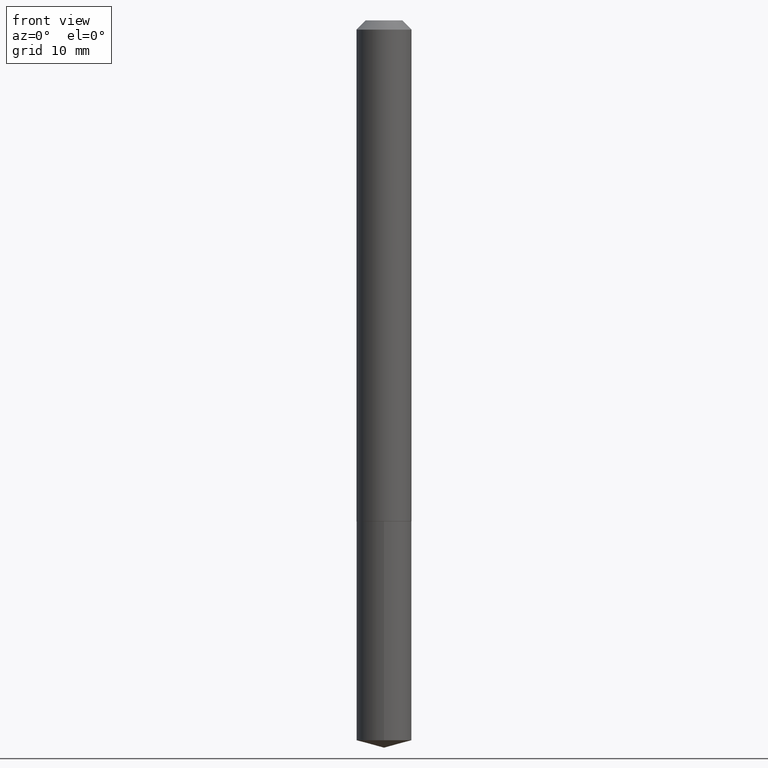
[diagram: clean part render]
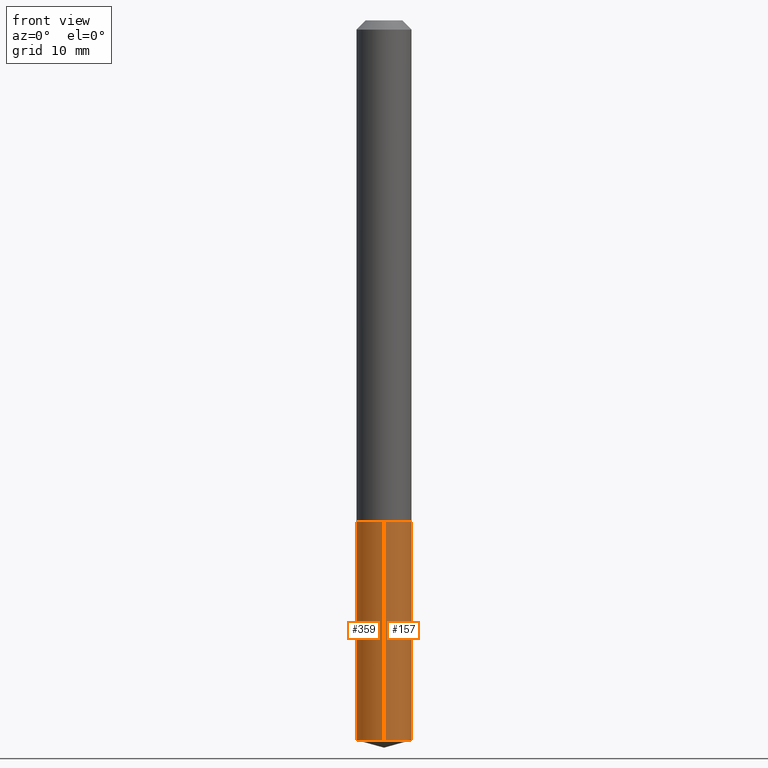
[diagram: same view with one multi-face feature highlighted, each face labeled with its STEP entity id]
A machine part, front view. The highlighted faces form ONE feature: a constant-radius fillet chain: 2 tangent blend faces with common blend radius 2.3495 mm. The faces share edges in the B-rep.
Their STEP definitions:
[1] entity #157 (Cylinder):
#19 = DIRECTION ( 'NONE',  ( -2.445456946378660043E-29, 3.491498322761038750E-15, 1.000000000000000000 ) ) ;
#35 = LINE ( 'NONE', #182, #123 ) ;
#36 = AXIS2_PLACEMENT_3D ( 'NONE', #197, #230, #314 ) ;
#46 = CARTESIAN_POINT ( 'NONE',  ( 5.908524411963939619E-29, -8.435831871635287469E-15, -2.416114699700121715 ) ) ;
#50 = CARTESIAN_POINT ( 'NONE',  ( 6.572520305781515328E-16, 0.09249999999999154732, -2.416114699700122159 ) ) ;
#59 = EDGE_CURVE ( 'NONE', #110, #358, #235, .T. ) ;
#67 = CARTESIAN_POINT ( 'NONE',  ( -6.459240476859384725E-16, -0.09250000000000588307, -1.680999999999999828 ) ) ;
#78 = CARTESIAN_POINT ( 'NONE',  ( 4.110833063197214951E-29, -5.869180130595328501E-15, -1.681000000000000272 ) ) ;
#83 = DIRECTION ( 'NONE',  ( -6.982962677686265922E-15, -1.000000000000000000, 2.953349182339743999E-15 ) ) ;
#89 = ORIENTED_EDGE ( 'NONE', *, *, #155, .F. ) ;
#104 = DIRECTION ( 'NONE',  ( -2.445456946378660043E-29, 3.491498322761038355E-15, 1.000000000000000000 ) ) ;
#110 = VERTEX_POINT ( 'NONE', #50 ) ;
#123 = VECTOR ( 'NONE', #301, 39.37007874015748143 ) ;
#130 = CARTESIAN_POINT ( 'NONE',  ( 6.572520305781518286E-16, 0.09249999999999412859, -1.681000000000000494 ) ) ;
#137 = DIRECTION ( 'NONE',  ( -2.445456946378660043E-29, 3.491498322761038355E-15, 1.000000000000000000 ) ) ;
#141 = AXIS2_PLACEMENT_3D ( 'NONE', #78, #137, #143 ) ;
#143 = DIRECTION ( 'NONE',  ( -6.982962677686265922E-15, -1.000000000000000000, 2.953349182339743999E-15 ) ) ;
#147 = ORIENTED_EDGE ( 'NONE', *, *, #214, .T. ) ;
#155 = EDGE_CURVE ( 'NONE', #339, #358, #169, .T. ) ;
#157 = ADVANCED_FACE ( 'NONE', ( #345 ), #227, .T. ) ;
#169 = CIRCLE ( 'NONE', #36, 0.09249999999999999889 ) ;
#172 = CARTESIAN_POINT ( 'NONE',  ( -6.459240476859204273E-16, -0.09250000000000842271, -2.416114699700121715 ) ) ;
#182 = CARTESIAN_POINT ( 'NONE',  ( -6.459240476859384725E-16, -0.09250000000000588307, -1.680999999999999828 ) ) ;
#197 = CARTESIAN_POINT ( 'NONE',  ( 4.110833063197214951E-29, -5.869180130595328501E-15, -1.681000000000000272 ) ) ;
#210 = VECTOR ( 'NONE', #19, 39.37007874015748143 ) ;
#214 = EDGE_CURVE ( 'NONE', #244, #110, #331, .T. ) ;
#227 = CYLINDRICAL_SURFACE ( 'NONE', #141, 0.09249999999999999889 ) ;
#230 = DIRECTION ( 'NONE',  ( -2.445456946378660043E-29, 3.491498322761038355E-15, 1.000000000000000000 ) ) ;
#235 = LINE ( 'NONE', #296, #210 ) ;
#244 = VERTEX_POINT ( 'NONE', #172 ) ;
#245 = AXIS2_PLACEMENT_3D ( 'NONE', #46, #104, #83 ) ;
#282 = EDGE_LOOP ( 'NONE', ( #147, #312, #89, #356 ) ) ;
#296 = CARTESIAN_POINT ( 'NONE',  ( 6.572520305781336848E-16, 0.09249999999999412859, -1.681000000000000494 ) ) ;
#301 = DIRECTION ( 'NONE',  ( -2.445456946378660043E-29, 3.491498322761038750E-15, 1.000000000000000000 ) ) ;
#312 = ORIENTED_EDGE ( 'NONE', *, *, #59, .T. ) ;
#314 = DIRECTION ( 'NONE',  ( -6.982962677686265922E-15, -1.000000000000000000, 2.953349182339743999E-15 ) ) ;
#330 = EDGE_CURVE ( 'NONE', #244, #339, #35, .T. ) ;
#331 = CIRCLE ( 'NONE', #245, 0.09249999999999999889 ) ;
#339 = VERTEX_POINT ( 'NONE', #67 ) ;
#345 = FACE_OUTER_BOUND ( 'NONE', #282, .T. ) ;
#356 = ORIENTED_EDGE ( 'NONE', *, *, #330, .F. ) ;
#358 = VERTEX_POINT ( 'NONE', #130 ) ;
[2] entity #359 (Cylinder):
#3 = CYLINDRICAL_SURFACE ( 'NONE', #154, 0.09249999999999999889 ) ;
#14 = ORIENTED_EDGE ( 'NONE', *, *, #330, .T. ) ;
#19 = DIRECTION ( 'NONE',  ( -2.445456946378660043E-29, 3.491498322761038750E-15, 1.000000000000000000 ) ) ;
#21 = DIRECTION ( 'NONE',  ( -2.445456946378660043E-29, 3.491498322761038355E-15, 1.000000000000000000 ) ) ;
#35 = LINE ( 'NONE', #182, #123 ) ;
#50 = CARTESIAN_POINT ( 'NONE',  ( 6.572520305781515328E-16, 0.09249999999999154732, -2.416114699700122159 ) ) ;
#52 = DIRECTION ( 'NONE',  ( -6.982962677686265922E-15, -1.000000000000000000, 2.953349182339743999E-15 ) ) ;
#59 = EDGE_CURVE ( 'NONE', #110, #358, #235, .T. ) ;
#65 = CIRCLE ( 'NONE', #85, 0.09249999999999999889 ) ;
#67 = CARTESIAN_POINT ( 'NONE',  ( -6.459240476859384725E-16, -0.09250000000000588307, -1.680999999999999828 ) ) ;
#68 = CIRCLE ( 'NONE', #366, 0.09249999999999999889 ) ;
#85 = AXIS2_PLACEMENT_3D ( 'NONE', #289, #21, #146 ) ;
#91 = FACE_OUTER_BOUND ( 'NONE', #159, .T. ) ;
#94 = EDGE_CURVE ( 'NONE', #358, #339, #68, .T. ) ;
#110 = VERTEX_POINT ( 'NONE', #50 ) ;
#123 = VECTOR ( 'NONE', #301, 39.37007874015748143 ) ;
#127 = CARTESIAN_POINT ( 'NONE',  ( 4.110833063197214951E-29, -5.869180130595328501E-15, -1.681000000000000272 ) ) ;
#130 = CARTESIAN_POINT ( 'NONE',  ( 6.572520305781518286E-16, 0.09249999999999412859, -1.681000000000000494 ) ) ;
#146 = DIRECTION ( 'NONE',  ( -6.982962677686265922E-15, -1.000000000000000000, 2.953349182339743999E-15 ) ) ;
#154 = AXIS2_PLACEMENT_3D ( 'NONE', #127, #213, #327 ) ;
#159 = EDGE_LOOP ( 'NONE', ( #320, #165, #14, #336 ) ) ;
#165 = ORIENTED_EDGE ( 'NONE', *, *, #247, .T. ) ;
#172 = CARTESIAN_POINT ( 'NONE',  ( -6.459240476859204273E-16, -0.09250000000000842271, -2.416114699700121715 ) ) ;
#182 = CARTESIAN_POINT ( 'NONE',  ( -6.459240476859384725E-16, -0.09250000000000588307, -1.680999999999999828 ) ) ;
#210 = VECTOR ( 'NONE', #19, 39.37007874015748143 ) ;
#213 = DIRECTION ( 'NONE',  ( -2.445456946378660043E-29, 3.491498322761038355E-15, 1.000000000000000000 ) ) ;
#235 = LINE ( 'NONE', #296, #210 ) ;
#244 = VERTEX_POINT ( 'NONE', #172 ) ;
#247 = EDGE_CURVE ( 'NONE', #110, #244, #65, .T. ) ;
#289 = CARTESIAN_POINT ( 'NONE',  ( 5.908524411963939619E-29, -8.435831871635287469E-15, -2.416114699700121715 ) ) ;
#296 = CARTESIAN_POINT ( 'NONE',  ( 6.572520305781336848E-16, 0.09249999999999412859, -1.681000000000000494 ) ) ;
#301 = DIRECTION ( 'NONE',  ( -2.445456946378660043E-29, 3.491498322761038750E-15, 1.000000000000000000 ) ) ;
#317 = CARTESIAN_POINT ( 'NONE',  ( 4.110833063197214951E-29, -5.869180130595328501E-15, -1.681000000000000272 ) ) ;
#320 = ORIENTED_EDGE ( 'NONE', *, *, #59, .F. ) ;
#327 = DIRECTION ( 'NONE',  ( -6.982962677686265922E-15, -1.000000000000000000, 2.953349182339743999E-15 ) ) ;
#330 = EDGE_CURVE ( 'NONE', #244, #339, #35, .T. ) ;
#336 = ORIENTED_EDGE ( 'NONE', *, *, #94, .F. ) ;
#339 = VERTEX_POINT ( 'NONE', #67 ) ;
#358 = VERTEX_POINT ( 'NONE', #130 ) ;
#359 = ADVANCED_FACE ( 'NONE', ( #91 ), #3, .T. ) ;
#366 = AXIS2_PLACEMENT_3D ( 'NONE', #317, #383, #52 ) ;
#383 = DIRECTION ( 'NONE',  ( -2.445456946378660043E-29, 3.491498322761038355E-15, 1.000000000000000000 ) ) ;